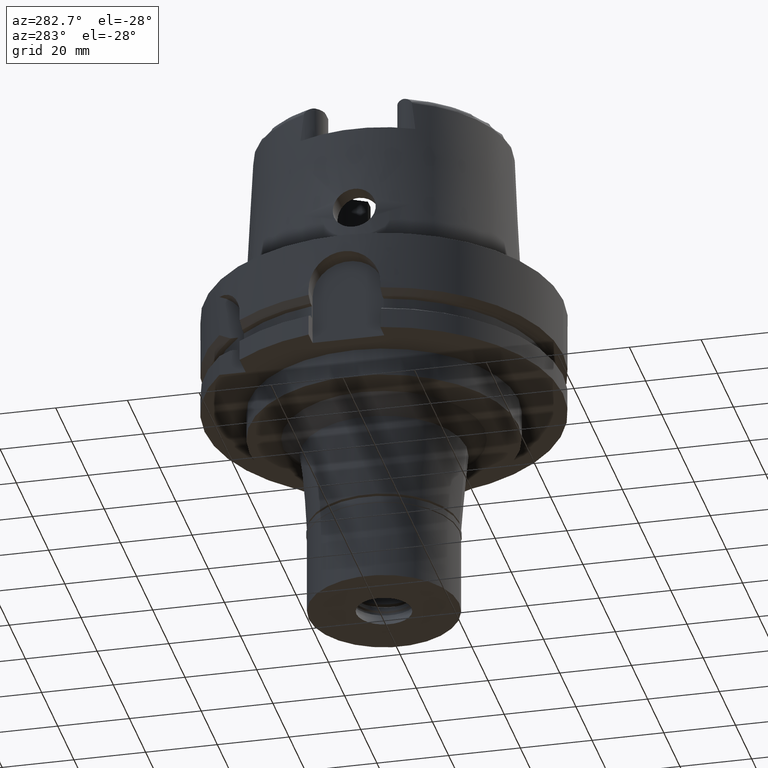
[diagram: clean part render]
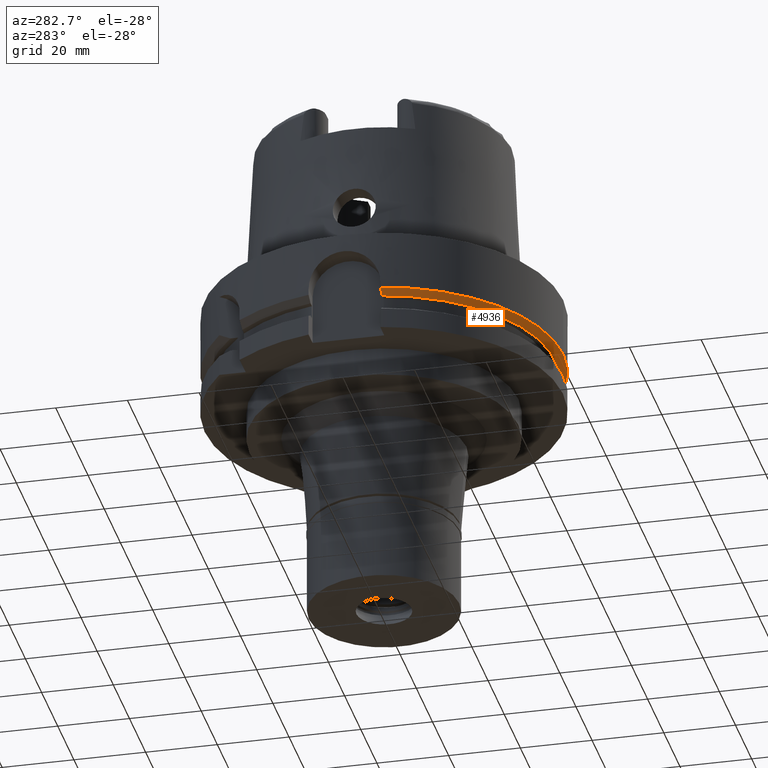
[diagram: same view with one face highlighted and labeled with its STEP entity id]
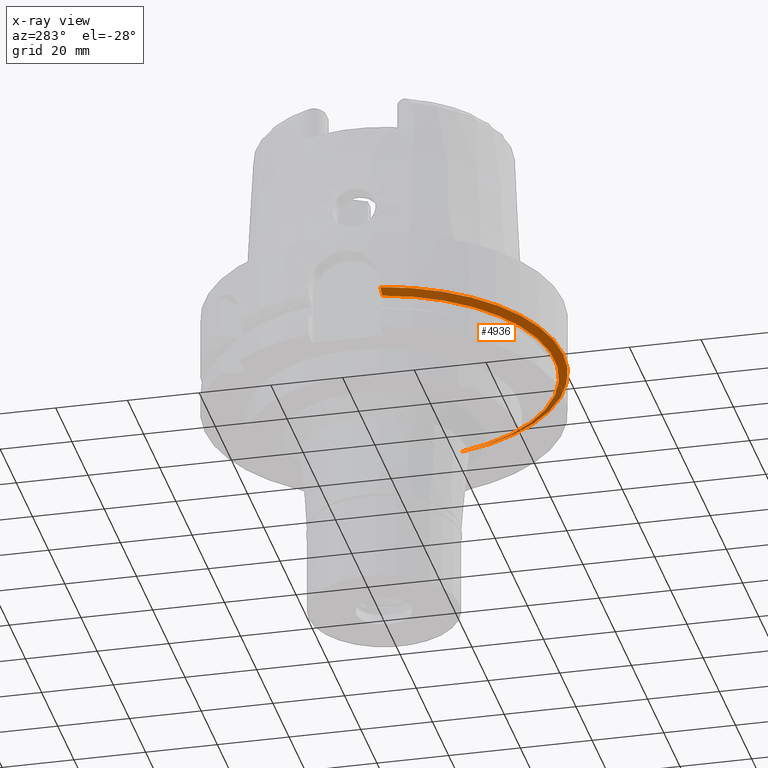
[diagram: x-ray of the same camera — body ghosted, the highlighted face saturated]
A machine part, auxiliary view. The second image highlights one B-rep face of the part: STEP entity #4936.
The next image is the same camera in x-ray: the body ghosted, the highlighted face saturated — about 12% of this face is hidden behind the body in this view.
In plain terms, the highlighted conical surface has half-angle 60 deg.
Its self-contained STEP definition (entity closure, byte-faithful):
#206 = EDGE_CURVE ( 'NONE', #3268, #5483, #3339, .T. ) ;
#354 = EDGE_CURVE ( 'NONE', #5483, #2438, #5163, .T. ) ;
#453 = CARTESIAN_POINT ( 'NONE',  ( 0.0000000000000000000, 0.0000000000000000000, -17.43870236789999950 ) ) ;
#515 = CIRCLE ( 'NONE', #2672, 47.62259526419000366 ) ;
#639 = CARTESIAN_POINT ( 'NONE',  ( -47.37076227628000424, -10.00000000000000000, -17.66769351206999872 ) ) ;
#658 = ORIENTED_EDGE ( 'NONE', *, *, #956, .F. ) ;
#662 = CARTESIAN_POINT ( 'NONE',  ( -46.56083740329999898, -10.00000000000000000, -18.12500000000000000 ) ) ;
#781 = CARTESIAN_POINT ( 'NONE',  ( 0.0000000000000000000, 0.0000000000000000000, -16.75240473580999989 ) ) ;
#801 = CARTESIAN_POINT ( 'NONE',  ( 48.50399904748000068, -11.00000000000000000, -16.90503024962000111 ) ) ;
#956 = EDGE_CURVE ( 'NONE', #1292, #2516, #2811, .T. ) ;
#1055 = CONICAL_SURFACE ( 'NONE', #4244, 48.81129763208999606, 1.047197551196400456 ) ;
#1163 = CARTESIAN_POINT ( 'NONE',  ( 47.96191616323000062, -11.00000000000000000, -17.21020456769999996 ) ) ;
#1292 = VERTEX_POINT ( 'NONE', #5068 ) ;
#1529 = DIRECTION ( 'NONE',  ( 0.0000000000000000000, 0.0000000000000000000, 1.000000000000000000 ) ) ;
#1541 = CARTESIAN_POINT ( 'NONE',  ( 0.0000000000000000000, 0.0000000000000000000, -18.12500000000000000 ) ) ;
#1987 = DIRECTION ( 'NONE',  ( 0.0000000000000000000, 0.0000000000000000000, 1.000000000000000000 ) ) ;
#2134 = CIRCLE ( 'NONE', #2957, 50.00000000000000000 ) ;
#2149 = CARTESIAN_POINT ( 'NONE',  ( 48.77499359303000404, -11.00000000000000000, -16.75240473580999989 ) ) ;
#2438 = VERTEX_POINT ( 'NONE', #4344 ) ;
#2516 = VERTEX_POINT ( 'NONE', #2880 ) ;
#2672 = AXIS2_PLACEMENT_3D ( 'NONE', #1541, #2792, #3200 ) ;
#2777 = CARTESIAN_POINT ( 'NONE',  ( -48.98979485565999425, -10.00000000000000000, -16.75240473580999989 ) ) ;
#2792 = DIRECTION ( 'NONE',  ( 0.0000000000000000000, 0.0000000000000000000, 1.000000000000000000 ) ) ;
#2811 = B_SPLINE_CURVE_WITH_KNOTS ( 'NONE', 3,
 ( #2149, #801, #1163, #3445, #3873, #3413 ),
 .UNSPECIFIED., .F., .F.,
 ( 4, 1, 1, 4 ),
 ( 0.0000000000000000000, 0.3333333333333000081, 0.6666666666667000474, 1.000000000000000000 ),
 .UNSPECIFIED. ) ;
#2880 = CARTESIAN_POINT ( 'NONE',  ( 46.33477721644000269, -11.00000000000000000, -18.12500000000000000 ) ) ;
#2957 = AXIS2_PLACEMENT_3D ( 'NONE', #4299, #1987, #5023 ) ;
#3142 = CARTESIAN_POINT ( 'NONE',  ( -46.56083740329999898, -10.00000000000000000, -18.12500000000000000 ) ) ;
#3200 = DIRECTION ( 'NONE',  ( -0.9777047459300259868, -0.2099843560504055240, 0.0000000000000000000 ) ) ;
#3268 = VERTEX_POINT ( 'NONE', #3142 ) ;
#3339 = B_SPLINE_CURVE_WITH_KNOTS ( 'NONE', 3,
 ( #662, #4134, #639, #3745, #5510, #2777 ),
 .UNSPECIFIED., .F., .F.,
 ( 4, 1, 1, 4 ),
 ( 0.0000000000000000000, 0.3333333333333000081, 0.6666666666667000474, 1.000000000000000000 ),
 .UNSPECIFIED. ) ;
#3413 = CARTESIAN_POINT ( 'NONE',  ( 46.33477721644000269, -11.00000000000000000, -18.12500000000000000 ) ) ;
#3427 = AXIS2_PLACEMENT_3D ( 'NONE', #781, #5197, #4339 ) ;
#3445 = CARTESIAN_POINT ( 'NONE',  ( 47.14851446809999658, -11.00000000000000000, -17.66774350266999960 ) ) ;
#3745 = CARTESIAN_POINT ( 'NONE',  ( -48.18041161677000161, -10.00000000000000000, -17.21015586611000003 ) ) ;
#3770 = FACE_OUTER_BOUND ( 'NONE', #4035, .T. ) ;
#3873 = CARTESIAN_POINT ( 'NONE',  ( 46.60605711264999940, -11.00000000000000000, -17.97261191788999923 ) ) ;
#3995 = ORIENTED_EDGE ( 'NONE', *, *, #354, .F. ) ;
#4025 = ORIENTED_EDGE ( 'NONE', *, *, #4968, .F. ) ;
#4035 = EDGE_LOOP ( 'NONE', ( #4379, #658, #4025, #3995, #4653 ) ) ;
#4134 = CARTESIAN_POINT ( 'NONE',  ( -46.83084020607000042, -10.00000000000000000, -17.97258933137000270 ) ) ;
#4244 = AXIS2_PLACEMENT_3D ( 'NONE', #453, #1529, #5508 ) ;
#4299 = CARTESIAN_POINT ( 'NONE',  ( 0.0000000000000000000, 0.0000000000000000000, -16.75240473580999989 ) ) ;
#4339 = DIRECTION ( 'NONE',  ( -0.9797958971132723072, -0.1999999999999946265, 0.0000000000000000000 ) ) ;
#4344 = CARTESIAN_POINT ( 'NONE',  ( 0.0000000000000000000, -50.00000000000000000, -16.75240473580999989 ) ) ;
#4379 = ORIENTED_EDGE ( 'NONE', *, *, #5312, .T. ) ;
#4609 = CARTESIAN_POINT ( 'NONE',  ( -48.98979485565999425, -10.00000000000000000, -16.75240473580999989 ) ) ;
#4653 = ORIENTED_EDGE ( 'NONE', *, *, #206, .F. ) ;
#4936 = ADVANCED_FACE ( 'NONE', ( #3770 ), #1055, .T. ) ;
#4968 = EDGE_CURVE ( 'NONE', #2438, #1292, #2134, .T. ) ;
#5023 = DIRECTION ( 'NONE',  ( 0.0000000000000000000, -1.000000000000000000, 0.0000000000000000000 ) ) ;
#5068 = CARTESIAN_POINT ( 'NONE',  ( 48.77499359303000404, -11.00000000000000000, -16.75240473580999989 ) ) ;
#5163 = CIRCLE ( 'NONE', #3427, 49.99999999999997868 ) ;
#5197 = DIRECTION ( 'NONE',  ( 0.0000000000000000000, 0.0000000000000000000, 1.000000000000000000 ) ) ;
#5312 = EDGE_CURVE ( 'NONE', #3268, #2516, #515, .T. ) ;
#5483 = VERTEX_POINT ( 'NONE', #4609 ) ;
#5508 = DIRECTION ( 'NONE',  ( 0.0000000000000000000, 1.000000000000000000, 0.0000000000000000000 ) ) ;
#5510 = CARTESIAN_POINT ( 'NONE',  ( -48.72002593967000195, -10.00000000000000000, -16.90500907969000011 ) ) ;